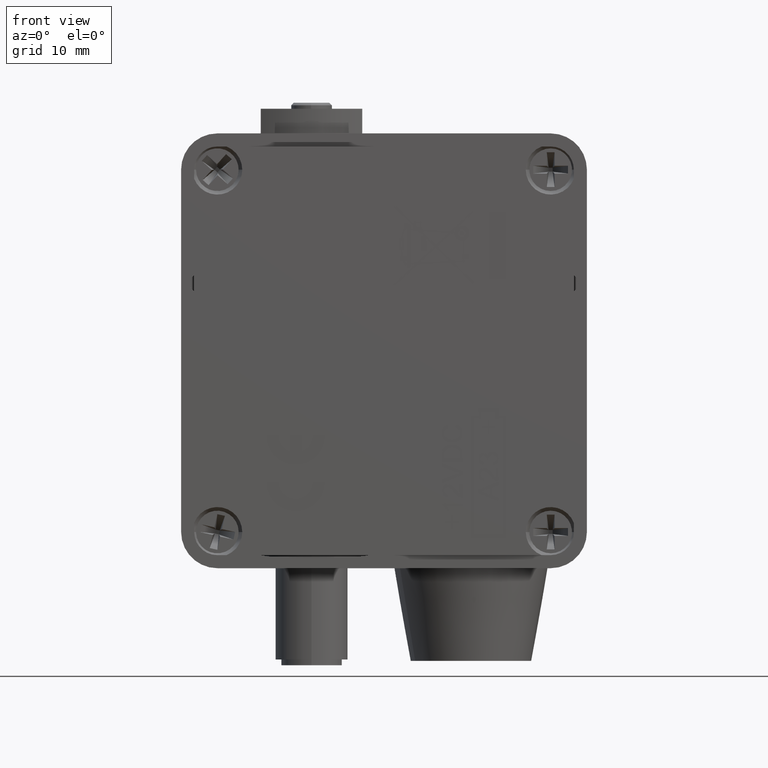
[diagram: clean part render]
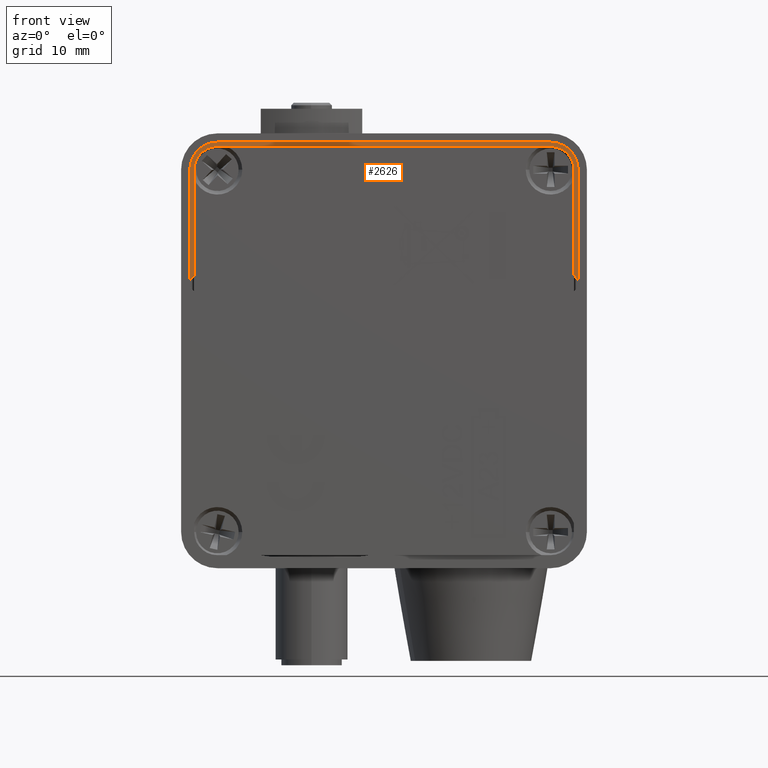
[diagram: same view with one face highlighted and labeled with its STEP entity id]
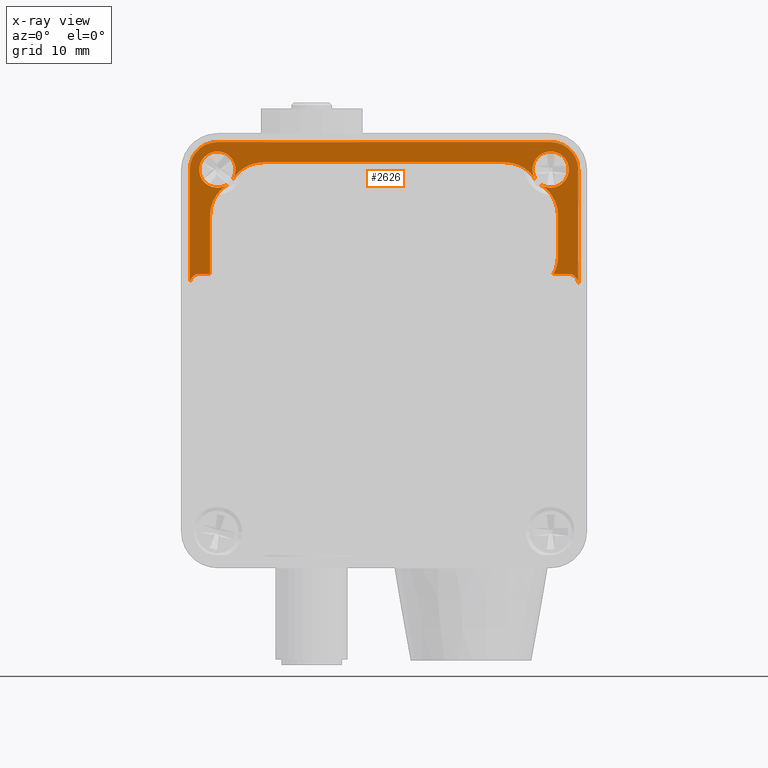
[diagram: x-ray of the same camera — body ghosted, the highlighted face saturated]
A machine part, front view. The second image highlights one B-rep face of the part: STEP entity #2626.
The next image is the same camera in x-ray: the body ghosted, the highlighted face saturated — about 0% of this face is hidden behind the body in this view.
In plain terms, the highlighted planar face has unit normal (0, 1, 0).
Its self-contained STEP definition (entity closure, byte-faithful):
#99 = DIRECTION ( 'NONE',  ( 3.660873552363053900E-016, 0.0000000000000000000, -1.000000000000000000 ) ) ;
#102 = CARTESIAN_POINT ( 'NONE',  ( -0.5999999999999999800, 0.06250000000000000000, -0.2836072192556195500 ) ) ;
#103 = CARTESIAN_POINT ( 'NONE',  ( -0.6374999999999998400, 0.06250000000000000000, -0.5174999999999998500 ) ) ;
#104 = DIRECTION ( 'NONE',  ( 0.0000000000000000000, -1.000000000000000000, 0.0000000000000000000 ) ) ;
#105 = DIRECTION ( 'NONE',  ( 0.0000000000000000000, 0.0000000000000000000, -1.000000000000000000 ) ) ;
#107 = CARTESIAN_POINT ( 'NONE',  ( 0.6374999999999998400, 0.06250000000000000000, -0.5174999999999997400 ) ) ;
#108 = DIRECTION ( 'NONE',  ( 0.0000000000000000000, 1.000000000000000000, 0.0000000000000000000 ) ) ;
#109 = DIRECTION ( 'NONE',  ( 0.0000000000000000000, 0.0000000000000000000, 1.000000000000000000 ) ) ;
#385 = CARTESIAN_POINT ( 'NONE',  ( -0.5750000000000000700, 0.06250000000000000000, -0.1250000000000005600 ) ) ;
#386 = DIRECTION ( 'NONE',  ( 0.0000000000000000000, -1.000000000000000000, 0.0000000000000000000 ) ) ;
#387 = DIRECTION ( 'NONE',  ( 0.0000000000000000000, 0.0000000000000000000, -1.000000000000000000 ) ) ;
#705 = CARTESIAN_POINT ( 'NONE',  ( 0.5750000000000000700, 0.06250000000000000000, -0.1875000000000003900 ) ) ;
#770 = CARTESIAN_POINT ( 'NONE',  ( -0.5416666666666666300, 0.06250000000000000000, -0.1778690730852068300 ) ) ;
#972 = CARTESIAN_POINT ( 'NONE',  ( -0.5750000000000000700, 0.06250000000000000000, -0.1875000000000005800 ) ) ;
#1004 = CARTESIAN_POINT ( 'NONE',  ( 0.5221309269147935700, 0.06250000000000000000, -0.1583333333333336000 ) ) ;
#1028 = CARTESIAN_POINT ( 'NONE',  ( 0.5750000000000000700, 0.06250000000000000000, -0.06250000000000047200 ) ) ;
#1181 = LINE ( 'NONE', #102, #1187 ) ;
#1183 = CIRCLE ( 'NONE', #50942, 0.03249999999999999400 ) ;
#1186 = CIRCLE ( 'NONE', #50943, 0.03249999999999999400 ) ;
#1187 = VECTOR ( 'NONE', #99, 39.37007874015748100 ) ;
#1338 = CIRCLE ( 'NONE', #50986, 0.06250000000000002800 ) ;
#1533 = VERTEX_POINT ( 'NONE', #66010 ) ;
#2626 = ADVANCED_FACE ( 'NONE', ( #56561 ), #53730, .F. ) ;
#5982 = EDGE_CURVE ( 'NONE', #46146, #94097, #1183, .T. ) ;
#5983 = EDGE_CURVE ( 'NONE', #44426, #46150, #1181, .T. ) ;
#5984 = EDGE_CURVE ( 'NONE', #11399, #54967, #1186, .T. ) ;
#6087 = EDGE_CURVE ( 'NONE', #8606, #8412, #1338, .T. ) ;
#8350 = VERTEX_POINT ( 'NONE', #705 ) ;
#8412 = VERTEX_POINT ( 'NONE', #770 ) ;
#8606 = VERTEX_POINT ( 'NONE', #972 ) ;
#8637 = VERTEX_POINT ( 'NONE', #1004 ) ;
#8661 = VERTEX_POINT ( 'NONE', #1028 ) ;
#10692 = VERTEX_POINT ( 'NONE', #59208 ) ;
#11399 = VERTEX_POINT ( 'NONE', #59303 ) ;
#20293 = EDGE_CURVE ( 'NONE', #8350, #8661, #71934, .T. ) ;
#23912 = ORIENTED_EDGE ( 'NONE', *, *, #91277, .F. ) ;
#23957 = ORIENTED_EDGE ( 'NONE', *, *, #91183, .F. ) ;
#23960 = ORIENTED_EDGE ( 'NONE', *, *, #91188, .F. ) ;
#23962 = ORIENTED_EDGE ( 'NONE', *, *, #5982, .F. ) ;
#23974 = ORIENTED_EDGE ( 'NONE', *, *, #29305, .F. ) ;
#23979 = ORIENTED_EDGE ( 'NONE', *, *, #91223, .F. ) ;
#23982 = ORIENTED_EDGE ( 'NONE', *, *, #91262, .F. ) ;
#23986 = ORIENTED_EDGE ( 'NONE', *, *, #91221, .F. ) ;
#23997 = ORIENTED_EDGE ( 'NONE', *, *, #91276, .F. ) ;
#24015 = ORIENTED_EDGE ( 'NONE', *, *, #91202, .F. ) ;
#24017 = ORIENTED_EDGE ( 'NONE', *, *, #5983, .F. ) ;
#24025 = ORIENTED_EDGE ( 'NONE', *, *, #91273, .F. ) ;
#24031 = ORIENTED_EDGE ( 'NONE', *, *, #5984, .T. ) ;
#24040 = ORIENTED_EDGE ( 'NONE', *, *, #91254, .F. ) ;
#24041 = ORIENTED_EDGE ( 'NONE', *, *, #91185, .F. ) ;
#24056 = ORIENTED_EDGE ( 'NONE', *, *, #91179, .F. ) ;
#24060 = ORIENTED_EDGE ( 'NONE', *, *, #91256, .F. ) ;
#24071 = ORIENTED_EDGE ( 'NONE', *, *, #91224, .F. ) ;
#24079 = ORIENTED_EDGE ( 'NONE', *, *, #29395, .F. ) ;
#24099 = ORIENTED_EDGE ( 'NONE', *, *, #91197, .F. ) ;
#24123 = ORIENTED_EDGE ( 'NONE', *, *, #20293, .F. ) ;
#24126 = ORIENTED_EDGE ( 'NONE', *, *, #6087, .F. ) ;
#24142 = ORIENTED_EDGE ( 'NONE', *, *, #91220, .F. ) ;
#29305 = EDGE_CURVE ( 'NONE', #83232, #8606, #64643, .T. ) ;
#29395 = EDGE_CURVE ( 'NONE', #8661, #8637, #64878, .T. ) ;
#31784 = AXIS2_PLACEMENT_3D ( 'NONE', #37069, #37070, #37071 ) ;
#31786 = AXIS2_PLACEMENT_3D ( 'NONE', #37076, #37077, #37078 ) ;
#31803 = AXIS2_PLACEMENT_3D ( 'NONE', #37163, #37164, #37165 ) ;
#31805 = AXIS2_PLACEMENT_3D ( 'NONE', #37169, #37170, #37171 ) ;
#31806 = AXIS2_PLACEMENT_3D ( 'NONE', #37174, #37175, #37176 ) ;
#31816 = AXIS2_PLACEMENT_3D ( 'NONE', #37244, #37245, #37246 ) ;
#31825 = AXIS2_PLACEMENT_3D ( 'NONE', #37291, #37292, #37293 ) ;
#31827 = AXIS2_PLACEMENT_3D ( 'NONE', #37299, #37300, #37301 ) ;
#31828 = AXIS2_PLACEMENT_3D ( 'NONE', #37304, #37305, #37306 ) ;
#35382 = CARTESIAN_POINT ( 'NONE',  ( -0.5750000000000000700, 0.06250000000000000000, -0.06250000000000054100 ) ) ;
#37059 = CARTESIAN_POINT ( 'NONE',  ( 0.6699999999999998200, 0.06250000000000000000, -0.1250000000000003300 ) ) ;
#37060 = DIRECTION ( 'NONE',  ( 1.092739197465705900E-016, 0.0000000000000000000, -1.000000000000000000 ) ) ;
#37069 = CARTESIAN_POINT ( 'NONE',  ( 0.5749999999999998400, 0.06250000000000000000, -0.1249999999999999000 ) ) ;
#37070 = DIRECTION ( 'NONE',  ( 0.0000000000000000000, 1.000000000000000000, 0.0000000000000000000 ) ) ;
#37071 = DIRECTION ( 'NONE',  ( 0.0000000000000000000, 0.0000000000000000000, 1.000000000000000000 ) ) ;
#37076 = CARTESIAN_POINT ( 'NONE',  ( -0.5749999999999998400, 0.06250000000000000000, -0.1250000000000000000 ) ) ;
#37077 = DIRECTION ( 'NONE',  ( 0.0000000000000000000, 1.000000000000000000, 0.0000000000000000000 ) ) ;
#37078 = DIRECTION ( 'NONE',  ( 0.0000000000000000000, 0.0000000000000000000, 1.000000000000000000 ) ) ;
#37079 = DIRECTION ( 'NONE',  ( 1.000000000000000000, 0.0000000000000000000, 4.454099989669995600E-017 ) ) ;
#37081 = CARTESIAN_POINT ( 'NONE',  ( -0.5749999999999998400, 0.06250000000000000000, -0.03000000000000000600 ) ) ;
#37099 = DIRECTION ( 'NONE',  ( -1.092739197465705900E-016, 0.0000000000000000000, 1.000000000000000000 ) ) ;
#37104 = CARTESIAN_POINT ( 'NONE',  ( -0.6699999999999998200, 0.06250000000000000000, -1.375000000000000000 ) ) ;
#37110 = CARTESIAN_POINT ( 'NONE',  ( 0.6374999999999998400, 0.06250000000000000000, -0.4849999999999998200 ) ) ;
#37117 = DIRECTION ( 'NONE',  ( -1.000000000000000000, 0.0000000000000000000, -1.071312938691868300E-016 ) ) ;
#37155 = CARTESIAN_POINT ( 'NONE',  ( -0.4163927807443806900, 0.06250000000000000000, -0.1000000000000000100 ) ) ;
#37156 = DIRECTION ( 'NONE',  ( -1.000000000000000000, -0.0000000000000000000, -0.0000000000000000000 ) ) ;
#37163 = CARTESIAN_POINT ( 'NONE',  ( 0.4749999999999998700, 0.06250000000000000000, -0.4249999999999998200 ) ) ;
#37164 = DIRECTION ( 'NONE',  ( 0.0000000000000000000, -1.000000000000000000, 0.0000000000000000000 ) ) ;
#37165 = DIRECTION ( 'NONE',  ( 0.0000000000000000000, 0.0000000000000000000, -1.000000000000000000 ) ) ;
#37169 = CARTESIAN_POINT ( 'NONE',  ( 0.4163927807443807400, 0.06250000000000000000, -0.2249999999999999800 ) ) ;
#37170 = DIRECTION ( 'NONE',  ( -0.0000000000000000000, -1.000000000000000000, -0.0000000000000000000 ) ) ;
#37171 = DIRECTION ( 'NONE',  ( 0.0000000000000000000, 0.0000000000000000000, 1.000000000000000000 ) ) ;
#37174 = CARTESIAN_POINT ( 'NONE',  ( 0.4749999999999998700, 0.06250000000000000000, -0.2836072192556193200 ) ) ;
#37175 = DIRECTION ( 'NONE',  ( 0.0000000000000000000, -1.000000000000000000, 0.0000000000000000000 ) ) ;
#37176 = DIRECTION ( 'NONE',  ( 0.0000000000000000000, 0.0000000000000000000, -1.000000000000000000 ) ) ;
#37242 = CARTESIAN_POINT ( 'NONE',  ( 0.6374999999999998400, 0.06250000000000000000, -0.4849999999999998200 ) ) ;
#37243 = DIRECTION ( 'NONE',  ( -1.000000000000000000, 0.0000000000000000000, -1.071312938691868300E-016 ) ) ;
#37244 = CARTESIAN_POINT ( 'NONE',  ( -0.4163927807443806900, 0.06250000000000000000, -0.2249999999999999800 ) ) ;
#37245 = DIRECTION ( 'NONE',  ( 0.0000000000000000000, -1.000000000000000000, 0.0000000000000000000 ) ) ;
#37246 = DIRECTION ( 'NONE',  ( 0.0000000000000000000, 0.0000000000000000000, -1.000000000000000000 ) ) ;
#37255 = CARTESIAN_POINT ( 'NONE',  ( 0.5999999999999998700, 0.06250000000000000000, -0.2836072192556193200 ) ) ;
#37256 = DIRECTION ( 'NONE',  ( -0.0000000000000000000, -0.0000000000000000000, 1.000000000000000000 ) ) ;
#37291 = CARTESIAN_POINT ( 'NONE',  ( -0.4749999999999999800, 0.06250000000000000000, -0.2836072192556195500 ) ) ;
#37292 = DIRECTION ( 'NONE',  ( 0.0000000000000000000, -1.000000000000000000, 0.0000000000000000000 ) ) ;
#37293 = DIRECTION ( 'NONE',  ( 0.0000000000000000000, 0.0000000000000000000, -1.000000000000000000 ) ) ;
#37299 = CARTESIAN_POINT ( 'NONE',  ( 0.5750000000000000700, 0.06250000000000000000, -0.1250000000000004200 ) ) ;
#37300 = DIRECTION ( 'NONE',  ( 0.0000000000000000000, -1.000000000000000000, 0.0000000000000000000 ) ) ;
#37301 = DIRECTION ( 'NONE',  ( 0.0000000000000000000, 0.0000000000000000000, -1.000000000000000000 ) ) ;
#37304 = CARTESIAN_POINT ( 'NONE',  ( -0.5750000000000000700, 0.06250000000000000000, -0.1250000000000005600 ) ) ;
#37305 = DIRECTION ( 'NONE',  ( 0.0000000000000000000, -1.000000000000000000, 0.0000000000000000000 ) ) ;
#37306 = DIRECTION ( 'NONE',  ( 0.0000000000000000000, 0.0000000000000000000, -1.000000000000000000 ) ) ;
#37928 = LINE ( 'NONE', #37059, #37929 ) ;
#37929 = VECTOR ( 'NONE', #37060, 39.37007874015748100 ) ;
#37932 = CIRCLE ( 'NONE', #31784, 0.09499999999999994600 ) ;
#37934 = CIRCLE ( 'NONE', #31786, 0.09500000000000004300 ) ;
#37937 = LINE ( 'NONE', #37081, #37941 ) ;
#37941 = VECTOR ( 'NONE', #37079, 39.37007874015748100 ) ;
#37950 = LINE ( 'NONE', #37104, #37954 ) ;
#37954 = VECTOR ( 'NONE', #37099, 39.37007874015748100 ) ;
#37957 = LINE ( 'NONE', #37110, #37963 ) ;
#37963 = VECTOR ( 'NONE', #37117, 39.37007874015748100 ) ;
#37982 = CIRCLE ( 'NONE', #31805, 0.1250000000000000000 ) ;
#37988 = LINE ( 'NONE', #37155, #37990 ) ;
#37989 = CIRCLE ( 'NONE', #31803, 0.1250000000000000300 ) ;
#37990 = VECTOR ( 'NONE', #37156, 39.37007874015748100 ) ;
#37993 = CIRCLE ( 'NONE', #31806, 0.1250000000000000300 ) ;
#38043 = CIRCLE ( 'NONE', #31816, 0.1249999999999999600 ) ;
#38046 = LINE ( 'NONE', #37242, #38048 ) ;
#38048 = VECTOR ( 'NONE', #37243, 39.37007874015748100 ) ;
#38055 = LINE ( 'NONE', #37255, #38057 ) ;
#38057 = VECTOR ( 'NONE', #37256, 39.37007874015748100 ) ;
#38072 = CIRCLE ( 'NONE', #31825, 0.1250000000000000000 ) ;
#38077 = CIRCLE ( 'NONE', #31827, 0.06249999999999996500 ) ;
#38078 = CIRCLE ( 'NONE', #31828, 0.06250000000000002800 ) ;
#39323 = VERTEX_POINT ( 'NONE', #60429 ) ;
#39443 = VERTEX_POINT ( 'NONE', #60483 ) ;
#39451 = VERTEX_POINT ( 'NONE', #60487 ) ;
#39522 = VERTEX_POINT ( 'NONE', #60519 ) ;
#39579 = VERTEX_POINT ( 'NONE', #60543 ) ;
#39740 = VERTEX_POINT ( 'NONE', #60612 ) ;
#39783 = VERTEX_POINT ( 'NONE', #60631 ) ;
#43911 = CARTESIAN_POINT ( 'NONE',  ( -0.5221309269147935700, 0.06250000000000001400, -0.1583333333333337100 ) ) ;
#43923 = CARTESIAN_POINT ( 'NONE',  ( 0.6699999999999998200, 0.06250000000000000000, -0.5174999999999997400 ) ) ;
#43989 = CARTESIAN_POINT ( 'NONE',  ( 0.6699999999999998200, 0.06250000000000000000, -0.1250000000000003300 ) ) ;
#44426 = VERTEX_POINT ( 'NONE', #60654 ) ;
#46146 = VERTEX_POINT ( 'NONE', #69040 ) ;
#46150 = VERTEX_POINT ( 'NONE', #69046 ) ;
#50942 = AXIS2_PLACEMENT_3D ( 'NONE', #103, #104, #105 ) ;
#50943 = AXIS2_PLACEMENT_3D ( 'NONE', #107, #108, #109 ) ;
#50986 = AXIS2_PLACEMENT_3D ( 'NONE', #385, #386, #387 ) ;
#51194 = AXIS2_PLACEMENT_3D ( 'NONE', #61206, #61207, #61208 ) ;
#51313 = AXIS2_PLACEMENT_3D ( 'NONE', #67136, #67138, #67140 ) ;
#51349 = AXIS2_PLACEMENT_3D ( 'NONE', #67457, #67458, #67459 ) ;
#53730 = PLANE ( 'NONE',  #87066 ) ;
#53732 = CARTESIAN_POINT ( 'NONE',  ( 0.5749999999999998400, 0.06250000000000000000, -0.1249999999999999000 ) ) ;
#53737 = DIRECTION ( 'NONE',  ( 0.0000000000000000000, 1.000000000000000000, 0.0000000000000000000 ) ) ;
#53738 = DIRECTION ( 'NONE',  ( 0.0000000000000000000, -0.0000000000000000000, 1.000000000000000000 ) ) ;
#54948 = VERTEX_POINT ( 'NONE', #43911 ) ;
#54967 = VERTEX_POINT ( 'NONE', #43923 ) ;
#56561 = FACE_OUTER_BOUND ( 'NONE', #83597, .T. ) ;
#57091 = CARTESIAN_POINT ( 'NONE',  ( -0.6699999999999998200, 0.06250000000000000000, -0.5174999999999998500 ) ) ;
#59208 = CARTESIAN_POINT ( 'NONE',  ( 0.4163927807443807400, 0.06250000000000000000, -0.1000000000000000100 ) ) ;
#59303 = CARTESIAN_POINT ( 'NONE',  ( 0.6374999999999998400, 0.06250000000000000000, -0.4849999999999997600 ) ) ;
#60429 = CARTESIAN_POINT ( 'NONE',  ( -0.6699999999999999300, 0.06250000000000000000, -0.1250000000000004400 ) ) ;
#60483 = CARTESIAN_POINT ( 'NONE',  ( 0.5999999999999998700, 0.06250000000000000000, -0.4249999999999998200 ) ) ;
#60487 = CARTESIAN_POINT ( 'NONE',  ( 0.5999999999999998700, 0.06250000000000000000, -0.2836072192556193200 ) ) ;
#60519 = CARTESIAN_POINT ( 'NONE',  ( -0.5749999999999998400, 0.06250000000000000000, -0.03000000000000000600 ) ) ;
#60543 = CARTESIAN_POINT ( 'NONE',  ( 0.5416666666666666300, 0.06250000000000001400, -0.1778690730852066900 ) ) ;
#60612 = CARTESIAN_POINT ( 'NONE',  ( 0.5846585609973064000, 0.06250000000000000000, -0.4849999999999998200 ) ) ;
#60631 = CARTESIAN_POINT ( 'NONE',  ( 0.5750000000000000700, 0.06250000000000000000, -0.02999999999999995400 ) ) ;
#60654 = CARTESIAN_POINT ( 'NONE',  ( -0.5999999999999999800, 0.06250000000000000000, -0.2836072192556195500 ) ) ;
#61206 = CARTESIAN_POINT ( 'NONE',  ( 0.5750000000000000700, 0.06250000000000000000, -0.1250000000000004200 ) ) ;
#61207 = DIRECTION ( 'NONE',  ( 0.0000000000000000000, -1.000000000000000000, 0.0000000000000000000 ) ) ;
#61208 = DIRECTION ( 'NONE',  ( 0.0000000000000000000, 0.0000000000000000000, -1.000000000000000000 ) ) ;
#64643 = CIRCLE ( 'NONE', #51313, 0.06250000000000002800 ) ;
#64878 = CIRCLE ( 'NONE', #51349, 0.06249999999999996500 ) ;
#66010 = CARTESIAN_POINT ( 'NONE',  ( -0.4163927807443806900, 0.06250000000000000000, -0.1000000000000000200 ) ) ;
#67136 = CARTESIAN_POINT ( 'NONE',  ( -0.5750000000000000700, 0.06250000000000000000, -0.1250000000000005600 ) ) ;
#67138 = DIRECTION ( 'NONE',  ( 0.0000000000000000000, -1.000000000000000000, 0.0000000000000000000 ) ) ;
#67140 = DIRECTION ( 'NONE',  ( 0.0000000000000000000, 0.0000000000000000000, -1.000000000000000000 ) ) ;
#67457 = CARTESIAN_POINT ( 'NONE',  ( 0.5750000000000000700, 0.06250000000000000000, -0.1250000000000004200 ) ) ;
#67458 = DIRECTION ( 'NONE',  ( 0.0000000000000000000, -1.000000000000000000, 0.0000000000000000000 ) ) ;
#67459 = DIRECTION ( 'NONE',  ( 0.0000000000000000000, 0.0000000000000000000, -1.000000000000000000 ) ) ;
#69040 = CARTESIAN_POINT ( 'NONE',  ( -0.6374999999999998400, 0.06250000000000000000, -0.4849999999999999300 ) ) ;
#69046 = CARTESIAN_POINT ( 'NONE',  ( -0.5999999999999998700, 0.06250000000000000000, -0.4849999999999998800 ) ) ;
#71934 = CIRCLE ( 'NONE', #51194, 0.06249999999999996500 ) ;
#72597 = VERTEX_POINT ( 'NONE', #43989 ) ;
#83232 = VERTEX_POINT ( 'NONE', #35382 ) ;
#83597 = EDGE_LOOP ( 'NONE', ( #24025, #24126, #23974, #23912, #24040, #24142, #23979, #24079, #24123, #23997, #24071, #23982, #23986, #24015, #24031, #24056, #23957, #23960, #24041, #24099, #23962, #24060, #24017 ) ) ;
#87066 = AXIS2_PLACEMENT_3D ( 'NONE', #53732, #53737, #53738 ) ;
#91179 = EDGE_CURVE ( 'NONE', #72597, #54967, #37928, .T. ) ;
#91183 = EDGE_CURVE ( 'NONE', #39783, #72597, #37932, .T. ) ;
#91185 = EDGE_CURVE ( 'NONE', #39323, #39522, #37934, .T. ) ;
#91188 = EDGE_CURVE ( 'NONE', #39522, #39783, #37937, .T. ) ;
#91197 = EDGE_CURVE ( 'NONE', #94097, #39323, #37950, .T. ) ;
#91202 = EDGE_CURVE ( 'NONE', #11399, #39740, #37957, .T. ) ;
#91220 = EDGE_CURVE ( 'NONE', #10692, #1533, #37988, .T. ) ;
#91221 = EDGE_CURVE ( 'NONE', #39740, #39443, #37989, .T. ) ;
#91223 = EDGE_CURVE ( 'NONE', #8637, #10692, #37982, .T. ) ;
#91224 = EDGE_CURVE ( 'NONE', #39451, #39579, #37993, .T. ) ;
#91254 = EDGE_CURVE ( 'NONE', #1533, #54948, #38043, .T. ) ;
#91256 = EDGE_CURVE ( 'NONE', #46150, #46146, #38046, .T. ) ;
#91262 = EDGE_CURVE ( 'NONE', #39443, #39451, #38055, .T. ) ;
#91273 = EDGE_CURVE ( 'NONE', #8412, #44426, #38072, .T. ) ;
#91276 = EDGE_CURVE ( 'NONE', #39579, #8350, #38077, .T. ) ;
#91277 = EDGE_CURVE ( 'NONE', #54948, #83232, #38078, .T. ) ;
#94097 = VERTEX_POINT ( 'NONE', #57091 ) ;